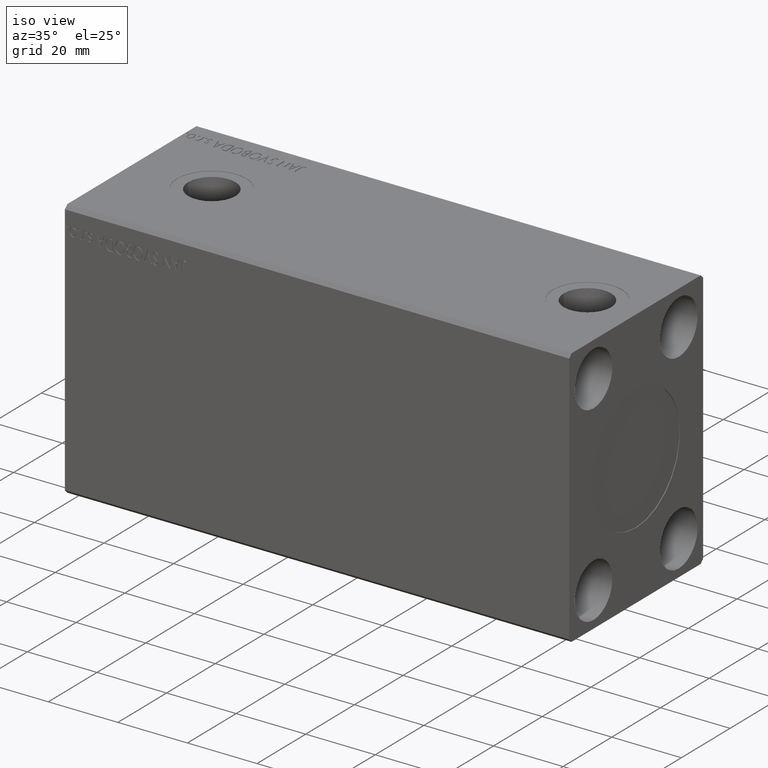
[diagram: clean part render]
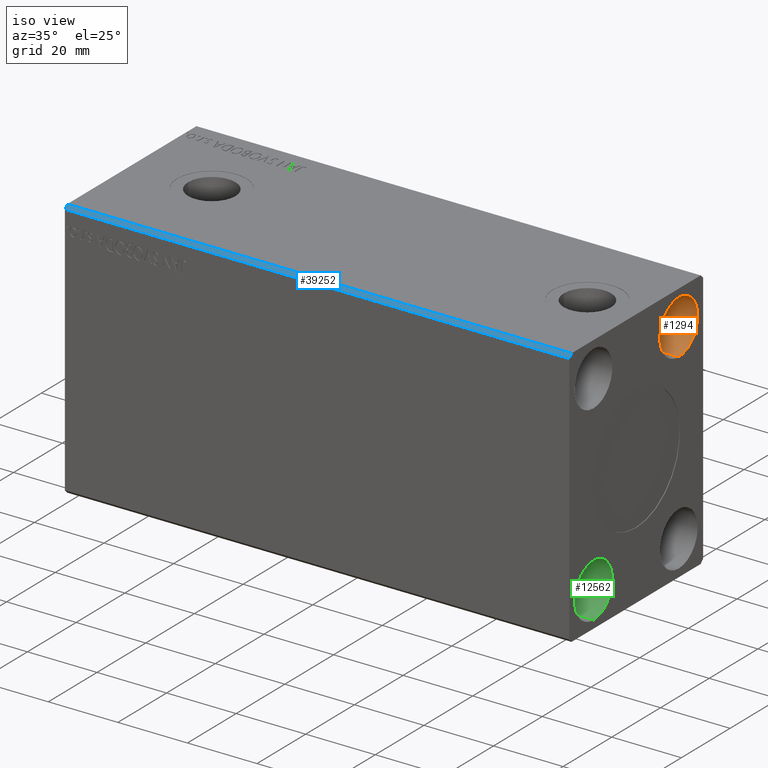
[diagram: same view with three faces highlighted in distinct colors, each labeled with its STEP entity id]
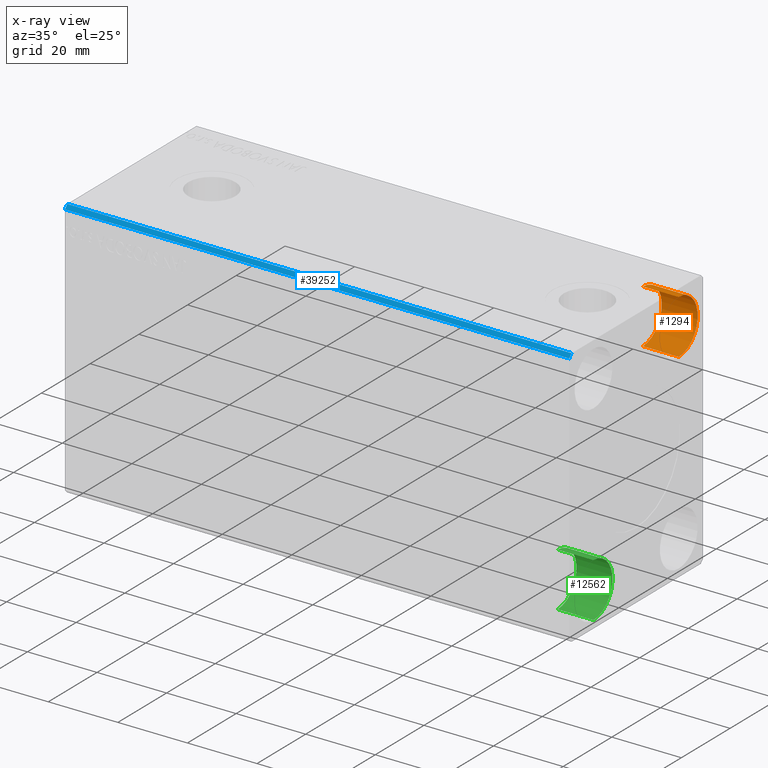
[diagram: x-ray of the same camera — body ghosted, the three highlighted faces saturated]
A machine part, iso view with three faces highlighted in distinct colors.
The next image is the same camera in x-ray (body ghosted, the three faces saturated) — at least one of them is partly hidden behind the body in this view.
Their STEP definitions:

[orange] entity #1294 — the highlighted cylindrical surface (edge-blend (fillet) strip) has radius 7.75 mm, axis along (1, -0, -0).
#1294 = ADVANCED_FACE ( 'NONE', ( #26870 ), #10531, .F. ) ;
#1836 = AXIS2_PLACEMENT_3D ( 'NONE', #37198, #34609, #20885 ) ;
#2050 = EDGE_CURVE ( 'NONE', #41711, #32309, #32674, .T. ) ;
#8708 = EDGE_CURVE ( 'NONE', #41711, #13740, #27352, .T. ) ;
#10314 = CARTESIAN_POINT ( 'NONE',  ( 134.6699999999999875, 17.50000000000000000, 27.50000000000000000 ) ) ;
#10531 = CYLINDRICAL_SURFACE ( 'NONE', #12763, 7.750000000000003553 ) ;
#12257 = CARTESIAN_POINT ( 'NONE',  ( 145.0000000000000000, 17.50000000000000000, 27.50000000000000000 ) ) ;
#12763 = AXIS2_PLACEMENT_3D ( 'NONE', #10314, #30301, #27500 ) ;
#13740 = VERTEX_POINT ( 'NONE', #27943 ) ;
#14919 = ORIENTED_EDGE ( 'NONE', *, *, #38794, .T. ) ;
#15178 = EDGE_CURVE ( 'NONE', #32309, #34299, #24134, .T. ) ;
#18091 = ORIENTED_EDGE ( 'NONE', *, *, #2050, .F. ) ;
#18359 = VECTOR ( 'NONE', #27349, 1000.000000000000000 ) ;
#19149 = DIRECTION ( 'NONE',  ( 0.000000000000000000, 0.000000000000000000, -1.000000000000000000 ) ) ;
#19249 = CARTESIAN_POINT ( 'NONE',  ( 134.6699999999999875, 17.50000000000000000, 19.74999999999999645 ) ) ;
#20885 = DIRECTION ( 'NONE',  ( 0.000000000000000000, 0.000000000000000000, -1.000000000000000000 ) ) ;
#21641 = VECTOR ( 'NONE', #37222, 1000.000000000000000 ) ;
#24134 = LINE ( 'NONE', #30561, #18359 ) ;
#25966 = CARTESIAN_POINT ( 'NONE',  ( 134.6699999999999875, 17.50000000000000000, 35.25000000000000000 ) ) ;
#26024 = DIRECTION ( 'NONE',  ( 1.000000000000000000, -0.000000000000000000, -0.000000000000000000 ) ) ;
#26870 = FACE_OUTER_BOUND ( 'NONE', #28595, .T. ) ;
#27229 = ORIENTED_EDGE ( 'NONE', *, *, #8708, .T. ) ;
#27349 = DIRECTION ( 'NONE',  ( 1.000000000000000000, -0.000000000000000000, -0.000000000000000000 ) ) ;
#27352 = LINE ( 'NONE', #37425, #21641 ) ;
#27500 = DIRECTION ( 'NONE',  ( 0.000000000000000000, 0.000000000000000000, -1.000000000000000000 ) ) ;
#27943 = CARTESIAN_POINT ( 'NONE',  ( 145.0000000000000000, 17.50000000000000000, 19.74999999999999645 ) ) ;
#28595 = EDGE_LOOP ( 'NONE', ( #41566, #18091, #27229, #14919 ) ) ;
#30301 = DIRECTION ( 'NONE',  ( 1.000000000000000000, -0.000000000000000000, -0.000000000000000000 ) ) ;
#30561 = CARTESIAN_POINT ( 'NONE',  ( 134.6699999999999875, 17.50000000000000000, 35.25000000000000000 ) ) ;
#32309 = VERTEX_POINT ( 'NONE', #25966 ) ;
#32674 = CIRCLE ( 'NONE', #1836, 7.750000000000003553 ) ;
#34299 = VERTEX_POINT ( 'NONE', #34906 ) ;
#34609 = DIRECTION ( 'NONE',  ( 1.000000000000000000, -0.000000000000000000, -0.000000000000000000 ) ) ;
#34906 = CARTESIAN_POINT ( 'NONE',  ( 145.0000000000000000, 17.50000000000000000, 35.25000000000000000 ) ) ;
#35119 = CIRCLE ( 'NONE', #39228, 7.750000000000003553 ) ;
#37198 = CARTESIAN_POINT ( 'NONE',  ( 134.6699999999999875, 17.50000000000000000, 27.50000000000000000 ) ) ;
#37222 = DIRECTION ( 'NONE',  ( 1.000000000000000000, -0.000000000000000000, -0.000000000000000000 ) ) ;
#37425 = CARTESIAN_POINT ( 'NONE',  ( 134.6699999999999875, 17.50000000000000000, 19.74999999999999645 ) ) ;
#38794 = EDGE_CURVE ( 'NONE', #13740, #34299, #35119, .T. ) ;
#39228 = AXIS2_PLACEMENT_3D ( 'NONE', #12257, #26024, #19149 ) ;
#41566 = ORIENTED_EDGE ( 'NONE', *, *, #15178, .F. ) ;
#41711 = VERTEX_POINT ( 'NONE', #19249 ) ;

[blue] entity #39252 — the highlighted planar face has unit normal (0, 0.7071, -0.7071).
#140 = DIRECTION ( 'NONE',  ( -1.000000000000000000, -0.000000000000000000, -0.000000000000000000 ) ) ;
#176 = VECTOR ( 'NONE', #33088, 1000.000000000000000 ) ;
#204 = ORIENTED_EDGE ( 'NONE', *, *, #30462, .T. ) ;
#664 = LINE ( 'NONE', #874, #176 ) ;
#874 = CARTESIAN_POINT ( 'NONE',  ( 145.0000000000000000, -27.50000000000000711, 36.50000000000000711 ) ) ;
#3976 = LINE ( 'NONE', #40258, #39231 ) ;
#4660 = DIRECTION ( 'NONE',  ( 0.000000000000000000, 0.7071067811865474617, 0.7071067811865474617 ) ) ;
#6132 = ORIENTED_EDGE ( 'NONE', *, *, #33128, .T. ) ;
#6238 = VERTEX_POINT ( 'NONE', #16267 ) ;
#6704 = EDGE_CURVE ( 'NONE', #6238, #37317, #14660, .T. ) ;
#7872 = FACE_OUTER_BOUND ( 'NONE', #41051, .T. ) ;
#8232 = CARTESIAN_POINT ( 'NONE',  ( 145.0000000000000000, -26.50000000000000711, 37.50000000000000711 ) ) ;
#11021 = DIRECTION ( 'NONE',  ( 0.000000000000000000, -0.7071067811865474617, -0.7071067811865474617 ) ) ;
#14660 = LINE ( 'NONE', #8232, #31331 ) ;
#15271 = LINE ( 'NONE', #35042, #40504 ) ;
#15281 = ORIENTED_EDGE ( 'NONE', *, *, #6704, .F. ) ;
#16267 = CARTESIAN_POINT ( 'NONE',  ( 145.0000000000000000, -26.50000000000000711, 37.50000000000000711 ) ) ;
#20262 = VERTEX_POINT ( 'NONE', #24775 ) ;
#20988 = DIRECTION ( 'NONE',  ( 0.000000000000000000, 0.7071067811865475727, -0.7071067811865475727 ) ) ;
#22368 = CARTESIAN_POINT ( 'NONE',  ( 0.000000000000000000, -27.50000000000000711, 36.50000000000000711 ) ) ;
#24775 = CARTESIAN_POINT ( 'NONE',  ( 0.000000000000000000, -26.50000000000000711, 37.50000000000000711 ) ) ;
#29922 = ORIENTED_EDGE ( 'NONE', *, *, #39773, .F. ) ;
#30462 = EDGE_CURVE ( 'NONE', #20262, #38787, #15271, .T. ) ;
#31331 = VECTOR ( 'NONE', #11021, 1000.000000000000114 ) ;
#32857 = CARTESIAN_POINT ( 'NONE',  ( 145.0000000000000000, -27.50000000000000711, 36.50000000000000711 ) ) ;
#33088 = DIRECTION ( 'NONE',  ( -1.000000000000000000, -0.000000000000000000, -0.000000000000000000 ) ) ;
#33128 = EDGE_CURVE ( 'NONE', #6238, #20262, #3976, .T. ) ;
#33864 = PLANE ( 'NONE',  #35853 ) ;
#34286 = CARTESIAN_POINT ( 'NONE',  ( 145.0000000000000000, -26.50000000000000711, 37.50000000000000711 ) ) ;
#35042 = CARTESIAN_POINT ( 'NONE',  ( 0.000000000000000000, -26.50000000000000711, 37.50000000000000711 ) ) ;
#35853 = AXIS2_PLACEMENT_3D ( 'NONE', #34286, #20988, #4660 ) ;
#37317 = VERTEX_POINT ( 'NONE', #32857 ) ;
#37827 = DIRECTION ( 'NONE',  ( 0.000000000000000000, -0.7071067811865474617, -0.7071067811865474617 ) ) ;
#38787 = VERTEX_POINT ( 'NONE', #22368 ) ;
#39231 = VECTOR ( 'NONE', #140, 1000.000000000000000 ) ;
#39252 = ADVANCED_FACE ( 'NONE', ( #7872 ), #33864, .F. ) ;
#39773 = EDGE_CURVE ( 'NONE', #37317, #38787, #664, .T. ) ;
#40258 = CARTESIAN_POINT ( 'NONE',  ( 145.0000000000000000, -26.50000000000000711, 37.50000000000000711 ) ) ;
#40504 = VECTOR ( 'NONE', #37827, 1000.000000000000114 ) ;
#41051 = EDGE_LOOP ( 'NONE', ( #204, #29922, #15281, #6132 ) ) ;

[green] entity #12562 — the highlighted cylindrical surface (edge-blend (fillet) strip) has radius 7.75 mm, axis along (1, -0, -0).
#1111 = CARTESIAN_POINT ( 'NONE',  ( 134.6699999999999875, -17.50000000000000000, -19.74999999999999645 ) ) ;
#4133 = FACE_OUTER_BOUND ( 'NONE', #30206, .T. ) ;
#5143 = DIRECTION ( 'NONE',  ( 0.000000000000000000, 0.000000000000000000, -1.000000000000000000 ) ) ;
#5155 = DIRECTION ( 'NONE',  ( 0.000000000000000000, 0.000000000000000000, -1.000000000000000000 ) ) ;
#5257 = CIRCLE ( 'NONE', #26541, 7.750000000000003553 ) ;
#5455 = EDGE_CURVE ( 'NONE', #39820, #36940, #36438, .T. ) ;
#6926 = CYLINDRICAL_SURFACE ( 'NONE', #28609, 7.750000000000003553 ) ;
#7303 = CARTESIAN_POINT ( 'NONE',  ( 134.6699999999999875, -17.50000000000000000, -35.25000000000000000 ) ) ;
#10140 = DIRECTION ( 'NONE',  ( 1.000000000000000000, -0.000000000000000000, -0.000000000000000000 ) ) ;
#11806 = CARTESIAN_POINT ( 'NONE',  ( 145.0000000000000000, -17.50000000000000000, -27.50000000000000000 ) ) ;
#12562 = ADVANCED_FACE ( 'NONE', ( #4133 ), #6926, .F. ) ;
#13091 = EDGE_CURVE ( 'NONE', #36940, #32416, #5257, .T. ) ;
#17218 = DIRECTION ( 'NONE',  ( 1.000000000000000000, -0.000000000000000000, -0.000000000000000000 ) ) ;
#18551 = EDGE_CURVE ( 'NONE', #39820, #27869, #23140, .T. ) ;
#19847 = ORIENTED_EDGE ( 'NONE', *, *, #18551, .F. ) ;
#19919 = CARTESIAN_POINT ( 'NONE',  ( 134.6699999999999875, -17.50000000000000000, -35.25000000000000000 ) ) ;
#20050 = CARTESIAN_POINT ( 'NONE',  ( 134.6699999999999875, -17.50000000000000000, -27.50000000000000000 ) ) ;
#20062 = CARTESIAN_POINT ( 'NONE',  ( 134.6699999999999875, -17.50000000000000000, -27.50000000000000000 ) ) ;
#23137 = DIRECTION ( 'NONE',  ( 1.000000000000000000, -0.000000000000000000, -0.000000000000000000 ) ) ;
#23140 = CIRCLE ( 'NONE', #24521, 7.750000000000003553 ) ;
#23891 = LINE ( 'NONE', #1111, #35063 ) ;
#23978 = ORIENTED_EDGE ( 'NONE', *, *, #31747, .F. ) ;
#24521 = AXIS2_PLACEMENT_3D ( 'NONE', #20062, #27924, #5143 ) ;
#25141 = DIRECTION ( 'NONE',  ( 1.000000000000000000, -0.000000000000000000, -0.000000000000000000 ) ) ;
#26377 = CARTESIAN_POINT ( 'NONE',  ( 145.0000000000000000, -17.50000000000000000, -19.74999999999999645 ) ) ;
#26541 = AXIS2_PLACEMENT_3D ( 'NONE', #11806, #25141, #5155 ) ;
#26889 = CARTESIAN_POINT ( 'NONE',  ( 134.6699999999999875, -17.50000000000000000, -19.74999999999999645 ) ) ;
#26937 = CARTESIAN_POINT ( 'NONE',  ( 145.0000000000000000, -17.50000000000000000, -35.25000000000000000 ) ) ;
#27869 = VERTEX_POINT ( 'NONE', #26889 ) ;
#27924 = DIRECTION ( 'NONE',  ( 1.000000000000000000, -0.000000000000000000, -0.000000000000000000 ) ) ;
#28609 = AXIS2_PLACEMENT_3D ( 'NONE', #20050, #17218, #29910 ) ;
#29910 = DIRECTION ( 'NONE',  ( 0.000000000000000000, 0.000000000000000000, -1.000000000000000000 ) ) ;
#30206 = EDGE_LOOP ( 'NONE', ( #23978, #19847, #32808, #34990 ) ) ;
#31747 = EDGE_CURVE ( 'NONE', #27869, #32416, #23891, .T. ) ;
#32416 = VERTEX_POINT ( 'NONE', #26377 ) ;
#32808 = ORIENTED_EDGE ( 'NONE', *, *, #5455, .T. ) ;
#34990 = ORIENTED_EDGE ( 'NONE', *, *, #13091, .T. ) ;
#35063 = VECTOR ( 'NONE', #10140, 1000.000000000000000 ) ;
#36438 = LINE ( 'NONE', #19919, #40878 ) ;
#36940 = VERTEX_POINT ( 'NONE', #26937 ) ;
#39820 = VERTEX_POINT ( 'NONE', #7303 ) ;
#40878 = VECTOR ( 'NONE', #23137, 1000.000000000000000 ) ;